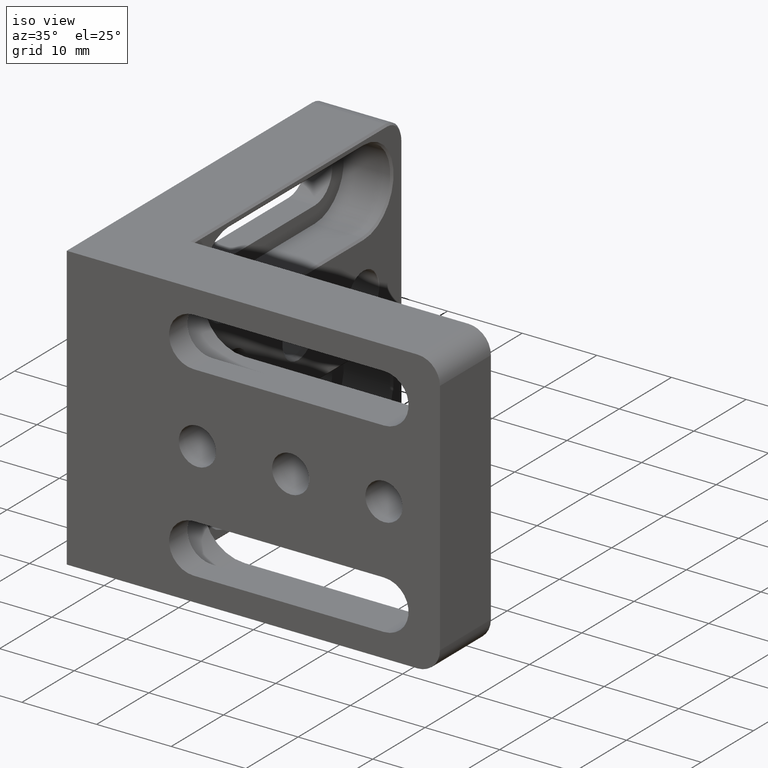
[diagram: clean part render]
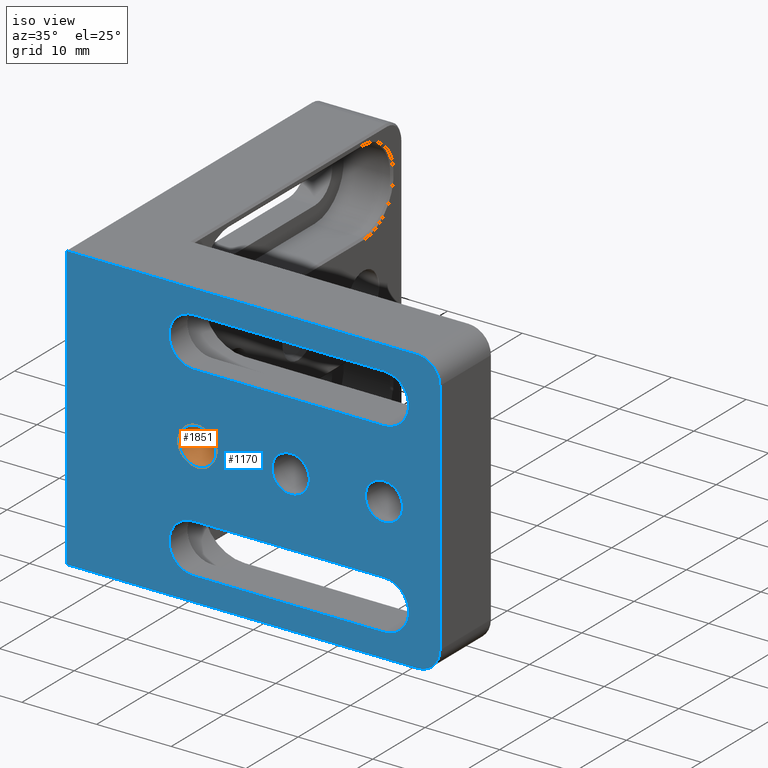
[diagram: same view with the hole feature highlighted: cylindrical wall and planar end face, labeled with their STEP entity ids]
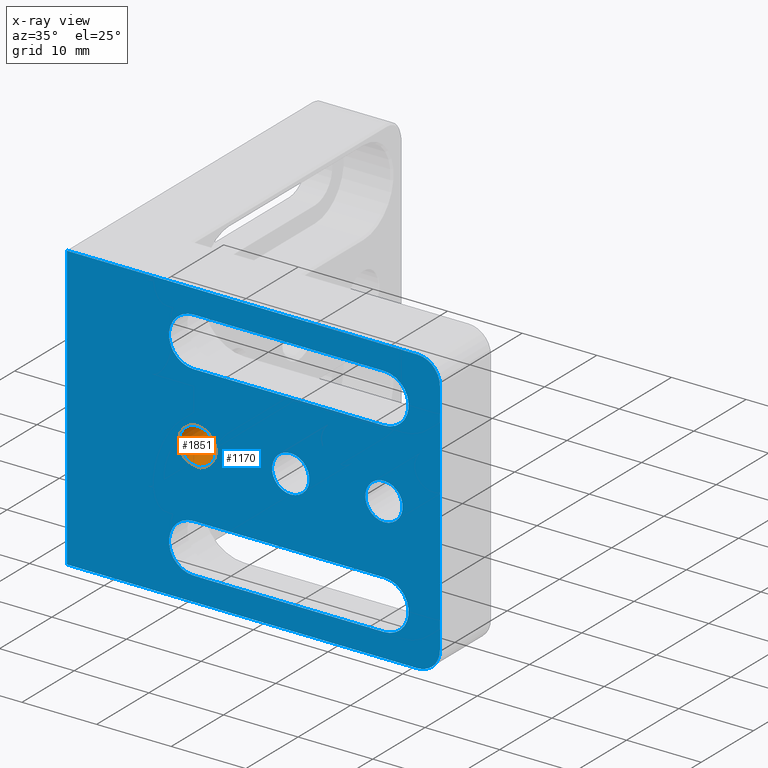
[diagram: x-ray of the same camera — body ghosted, the hole faces saturated]
A machine part, iso view. The highlighted faces form one hole feature of diameter 5 mm: the cylindrical wall (entity #1851, orange) and its adjacent planar end face (entity #1170, blue) — they share a circular edge in the B-rep.
The next image is the same camera in x-ray (body ghosted, the hole faces saturated) — the bore reads through the body.
Wall:
#15 = EDGE_LOOP ( 'NONE', ( #674 ) ) ;
#38 = DIRECTION ( 'NONE',  ( 0.000000000000000000, 0.000000000000000000, 1.000000000000000000 ) ) ;
#194 = CIRCLE ( 'NONE', #527, 2.499999999999998668 ) ;
#281 = EDGE_LOOP ( 'NONE', ( #1855 ) ) ;
#292 = EDGE_CURVE ( 'NONE', #1358, #1358, #194, .T. ) ;
#472 = CARTESIAN_POINT ( 'NONE',  ( -7.500000000000003553, -1.734723475976807094E-15, 0.000000000000000000 ) ) ;
#527 = AXIS2_PLACEMENT_3D ( 'NONE', #472, #1457, #38 ) ;
#560 = CARTESIAN_POINT ( 'NONE',  ( -7.500000000000003553, 9.474999999999974776, 2.499999999999988454 ) ) ;
#571 = EDGE_CURVE ( 'NONE', #1205, #1205, #1304, .T. ) ;
#674 = ORIENTED_EDGE ( 'NONE', *, *, #571, .T. ) ;
#945 = CARTESIAN_POINT ( 'NONE',  ( -7.500000000000003553, -1.734723475976807094E-15, 2.499999999999998668 ) ) ;
#1205 = VERTEX_POINT ( 'NONE', #560 ) ;
#1304 = CIRCLE ( 'NONE', #1519, 2.499999999999988454 ) ;
#1358 = VERTEX_POINT ( 'NONE', #945 ) ;
#1396 = FACE_OUTER_BOUND ( 'NONE', #15, .T. ) ;
#1398 = DIRECTION ( 'NONE',  ( -0.000000000000000000, 1.000000000000000000, -0.000000000000000000 ) ) ;
#1457 = DIRECTION ( 'NONE',  ( -0.000000000000000000, 1.000000000000000000, -0.000000000000000000 ) ) ;
#1519 = AXIS2_PLACEMENT_3D ( 'NONE', #2595, #1398, #2023 ) ;
#1587 = FACE_OUTER_BOUND ( 'NONE', #281, .T. ) ;
#1623 = AXIS2_PLACEMENT_3D ( 'NONE', #2393, #2167, #1993 ) ;
#1851 = ADVANCED_FACE ( 'NONE', ( #1587, #1396 ), #2563, .F. ) ;
#1855 = ORIENTED_EDGE ( 'NONE', *, *, #292, .F. ) ;
#1993 = DIRECTION ( 'NONE',  ( 0.000000000000000000, 0.000000000000000000, 1.000000000000000000 ) ) ;
#2023 = DIRECTION ( 'NONE',  ( 0.000000000000000000, 0.000000000000000000, 1.000000000000000000 ) ) ;
#2167 = DIRECTION ( 'NONE',  ( -0.000000000000000000, 1.000000000000000000, -0.000000000000000000 ) ) ;
#2393 = CARTESIAN_POINT ( 'NONE',  ( -7.500000000000003553, 10.00000000000000000, 0.000000000000000000 ) ) ;
#2563 = CYLINDRICAL_SURFACE ( 'NONE', #1623, 2.499999999999993339 ) ;
#2595 = CARTESIAN_POINT ( 'NONE',  ( -7.500000000000003553, 9.474999999999974776, 0.000000000000000000 ) ) ;
End face:
#12 = CARTESIAN_POINT ( 'NONE',  ( 0.000000000000000000, 0.000000000000000000, 15.80000000000000071 ) ) ;
#33 = DIRECTION ( 'NONE',  ( -0.000000000000000000, -1.000000000000000000, -0.000000000000000000 ) ) ;
#37 = EDGE_CURVE ( 'NONE', #417, #95, #2350, .T. ) ;
#38 = DIRECTION ( 'NONE',  ( 0.000000000000000000, 0.000000000000000000, 1.000000000000000000 ) ) ;
#45 = EDGE_CURVE ( 'NONE', #1989, #1274, #2114, .T. ) ;
#74 = VECTOR ( 'NONE', #1376, 1000.000000000000000 ) ;
#75 = EDGE_CURVE ( 'NONE', #1274, #2185, #2611, .T. ) ;
#95 = VERTEX_POINT ( 'NONE', #793 ) ;
#143 = EDGE_LOOP ( 'NONE', ( #2266, #836, #558, #1773 ) ) ;
#155 = DIRECTION ( 'NONE',  ( 2.312964634635743450E-15, 0.000000000000000000, 1.000000000000000000 ) ) ;
#178 = CARTESIAN_POINT ( 'NONE',  ( 17.49999999999999645, 0.000000000000000000, -12.50000000000000000 ) ) ;
#194 = CIRCLE ( 'NONE', #527, 2.499999999999998668 ) ;
#225 = DIRECTION ( 'NONE',  ( 0.000000000000000000, -0.000000000000000000, 1.000000000000000000 ) ) ;
#227 = EDGE_CURVE ( 'NONE', #802, #802, #438, .T. ) ;
#257 = AXIS2_PLACEMENT_3D ( 'NONE', #2301, #663, #225 ) ;
#271 = VERTEX_POINT ( 'NONE', #1696 ) ;
#275 = FACE_BOUND ( 'NONE', #1464, .T. ) ;
#292 = EDGE_CURVE ( 'NONE', #1358, #1358, #194, .T. ) ;
#306 = EDGE_CURVE ( 'NONE', #1999, #522, #459, .T. ) ;
#326 = VECTOR ( 'NONE', #565, 1000.000000000000000 ) ;
#333 = DIRECTION ( 'NONE',  ( 0.000000000000000000, 0.000000000000000000, 1.000000000000000000 ) ) ;
#341 = EDGE_LOOP ( 'NONE', ( #1631, #1309, #1344, #1334 ) ) ;
#344 = CIRCLE ( 'NONE', #677, 2.999999999999999112 ) ;
#387 = ORIENTED_EDGE ( 'NONE', *, *, #1571, .F. ) ;
#408 = VERTEX_POINT ( 'NONE', #2447 ) ;
#417 = VERTEX_POINT ( 'NONE', #722 ) ;
#438 = CIRCLE ( 'NONE', #774, 2.499999999999998668 ) ;
#452 = PLANE ( 'NONE',  #257 ) ;
#453 = CARTESIAN_POINT ( 'NONE',  ( -25.00000000000000711, 0.000000000000000000, -19.00000000000000000 ) ) ;
#459 = LINE ( 'NONE', #2104, #874 ) ;
#465 = DIRECTION ( 'NONE',  ( 1.000000000000000000, 0.000000000000000000, 0.000000000000000000 ) ) ;
#472 = CARTESIAN_POINT ( 'NONE',  ( -7.500000000000003553, -1.734723475976807094E-15, 0.000000000000000000 ) ) ;
#504 = EDGE_LOOP ( 'NONE', ( #2370 ) ) ;
#522 = VERTEX_POINT ( 'NONE', #2446 ) ;
#527 = AXIS2_PLACEMENT_3D ( 'NONE', #472, #1457, #38 ) ;
#546 = CIRCLE ( 'NONE', #2045, 2.999999999999999112 ) ;
#558 = ORIENTED_EDGE ( 'NONE', *, *, #37, .T. ) ;
#565 = DIRECTION ( 'NONE',  ( -1.000000000000000000, -0.000000000000000000, -0.000000000000000000 ) ) ;
#634 = AXIS2_PLACEMENT_3D ( 'NONE', #2000, #1632, #2256 ) ;
#663 = DIRECTION ( 'NONE',  ( 0.000000000000000000, 1.000000000000000000, 0.000000000000000000 ) ) ;
#668 = DIRECTION ( 'NONE',  ( 0.000000000000000000, 0.000000000000000000, 1.000000000000000000 ) ) ;
#677 = AXIS2_PLACEMENT_3D ( 'NONE', #2584, #806, #155 ) ;
#722 = CARTESIAN_POINT ( 'NONE',  ( -8.000000000000000000, -8.673617379884035472E-16, -9.199999999999999289 ) ) ;
#741 = EDGE_CURVE ( 'NONE', #2185, #271, #981, .T. ) ;
#760 = CARTESIAN_POINT ( 'NONE',  ( 24.99999999999999645, 0.000000000000000000, 16.00000000000000355 ) ) ;
#774 = AXIS2_PLACEMENT_3D ( 'NONE', #1031, #1497, #2320 ) ;
#775 = CARTESIAN_POINT ( 'NONE',  ( 24.99999999999999289, 0.000000000000000000, -16.00000000000000000 ) ) ;
#793 = CARTESIAN_POINT ( 'NONE',  ( 17.49999999999999645, 0.000000000000000000, -9.199999999999999289 ) ) ;
#796 = EDGE_LOOP ( 'NONE', ( #1817, #1569, #387, #2155, #1509, #2080 ) ) ;
#802 = VERTEX_POINT ( 'NONE', #2214 ) ;
#806 = DIRECTION ( 'NONE',  ( -0.000000000000000000, -1.000000000000000000, -0.000000000000000000 ) ) ;
#822 = CARTESIAN_POINT ( 'NONE',  ( -25.00000000000000711, 0.000000000000000000, -19.00000000000000000 ) ) ;
#831 = EDGE_CURVE ( 'NONE', #522, #417, #1200, .T. ) ;
#836 = ORIENTED_EDGE ( 'NONE', *, *, #831, .T. ) ;
#844 = DIRECTION ( 'NONE',  ( -1.000000000000000000, 0.000000000000000000, 0.000000000000000000 ) ) ;
#874 = VECTOR ( 'NONE', #844, 1000.000000000000000 ) ;
#877 = LINE ( 'NONE', #453, #1360 ) ;
#926 = LINE ( 'NONE', #2352, #1900 ) ;
#945 = CARTESIAN_POINT ( 'NONE',  ( -7.500000000000003553, -1.734723475976807094E-15, 2.499999999999998668 ) ) ;
#981 = CIRCLE ( 'NONE', #1580, 3.300000000000000711 ) ;
#1031 = CARTESIAN_POINT ( 'NONE',  ( 17.49999999999999645, -1.734723475976807094E-15, 0.000000000000000000 ) ) ;
#1051 = FACE_OUTER_BOUND ( 'NONE', #796, .T. ) ;
#1064 = LINE ( 'NONE', #2290, #1065 ) ;
#1065 = VECTOR ( 'NONE', #465, 1000.000000000000000 ) ;
#1091 = CARTESIAN_POINT ( 'NONE',  ( 17.49999999999999645, -8.673617379884035472E-16, 9.199999999999999289 ) ) ;
#1151 = CARTESIAN_POINT ( 'NONE',  ( 24.99999999999999289, 0.000000000000000000, -19.00000000000000000 ) ) ;
#1170 = ADVANCED_FACE ( 'NONE', ( #2086, #275, #1490, #1051, #1691, #1287 ), #452, .F. ) ;
#1188 = VECTOR ( 'NONE', #1824, 1000.000000000000000 ) ;
#1200 = CIRCLE ( 'NONE', #2340, 3.300000000000000711 ) ;
#1203 = VERTEX_POINT ( 'NONE', #822 ) ;
#1214 = EDGE_CURVE ( 'NONE', #1499, #1333, #1064, .T. ) ;
#1274 = VERTEX_POINT ( 'NONE', #1544 ) ;
#1287 = FACE_BOUND ( 'NONE', #341, .T. ) ;
#1306 = EDGE_CURVE ( 'NONE', #271, #1989, #926, .T. ) ;
#1309 = ORIENTED_EDGE ( 'NONE', *, *, #75, .F. ) ;
#1328 = EDGE_CURVE ( 'NONE', #1753, #1203, #1351, .T. ) ;
#1333 = VERTEX_POINT ( 'NONE', #1367 ) ;
#1334 = ORIENTED_EDGE ( 'NONE', *, *, #1306, .F. ) ;
#1338 = DIRECTION ( 'NONE',  ( 1.000000000000000000, -0.000000000000000000, 0.000000000000000000 ) ) ;
#1344 = ORIENTED_EDGE ( 'NONE', *, *, #45, .F. ) ;
#1351 = LINE ( 'NONE', #2164, #326 ) ;
#1358 = VERTEX_POINT ( 'NONE', #945 ) ;
#1360 = VECTOR ( 'NONE', #1693, 1000.000000000000000 ) ;
#1367 = CARTESIAN_POINT ( 'NONE',  ( 21.99999999999999645, 0.000000000000000000, 19.00000000000000000 ) ) ;
#1376 = DIRECTION ( 'NONE',  ( 1.000000000000000000, -0.000000000000000000, 0.000000000000000000 ) ) ;
#1446 = CIRCLE ( 'NONE', #2123, 2.499999999999998668 ) ;
#1457 = DIRECTION ( 'NONE',  ( -0.000000000000000000, 1.000000000000000000, -0.000000000000000000 ) ) ;
#1464 = EDGE_LOOP ( 'NONE', ( #2356 ) ) ;
#1490 = FACE_BOUND ( 'NONE', #504, .T. ) ;
#1497 = DIRECTION ( 'NONE',  ( -0.000000000000000000, 1.000000000000000000, -0.000000000000000000 ) ) ;
#1499 = VERTEX_POINT ( 'NONE', #2528 ) ;
#1508 = LINE ( 'NONE', #1151, #2403 ) ;
#1509 = ORIENTED_EDGE ( 'NONE', *, *, #1214, .F. ) ;
#1517 = DIRECTION ( 'NONE',  ( 0.000000000000000000, 1.000000000000000000, 0.000000000000000000 ) ) ;
#1544 = CARTESIAN_POINT ( 'NONE',  ( 17.49999999999999645, 0.000000000000000000, 15.80000000000000071 ) ) ;
#1569 = ORIENTED_EDGE ( 'NONE', *, *, #2006, .T. ) ;
#1571 = EDGE_CURVE ( 'NONE', #2597, #2582, #1508, .T. ) ;
#1580 = AXIS2_PLACEMENT_3D ( 'NONE', #2303, #33, #668 ) ;
#1581 = CARTESIAN_POINT ( 'NONE',  ( -8.000000000000000000, -8.673617379884035472E-16, 15.80000000000000071 ) ) ;
#1631 = ORIENTED_EDGE ( 'NONE', *, *, #741, .F. ) ;
#1632 = DIRECTION ( 'NONE',  ( -0.000000000000000000, -1.000000000000000000, -0.000000000000000000 ) ) ;
#1645 = EDGE_CURVE ( 'NONE', #408, #408, #1446, .T. ) ;
#1691 = FACE_BOUND ( 'NONE', #143, .T. ) ;
#1693 = DIRECTION ( 'NONE',  ( 9.130123557772669567E-17, 0.000000000000000000, 1.000000000000000000 ) ) ;
#1696 = CARTESIAN_POINT ( 'NONE',  ( -8.000000000000000000, -8.673617379884035472E-16, 9.199999999999999289 ) ) ;
#1753 = VERTEX_POINT ( 'NONE', #2577 ) ;
#1773 = ORIENTED_EDGE ( 'NONE', *, *, #2548, .T. ) ;
#1779 = CARTESIAN_POINT ( 'NONE',  ( 0.000000000000000000, 0.000000000000000000, -9.199999999999999289 ) ) ;
#1817 = ORIENTED_EDGE ( 'NONE', *, *, #1328, .F. ) ;
#1824 = DIRECTION ( 'NONE',  ( -1.000000000000000000, 0.000000000000000000, 0.000000000000000000 ) ) ;
#1891 = CARTESIAN_POINT ( 'NONE',  ( 17.49999999999999645, -8.673617379884035472E-16, -15.80000000000000071 ) ) ;
#1900 = VECTOR ( 'NONE', #1338, 1000.000000000000000 ) ;
#1945 = ORIENTED_EDGE ( 'NONE', *, *, #292, .T. ) ;
#1989 = VERTEX_POINT ( 'NONE', #1091 ) ;
#1998 = DIRECTION ( 'NONE',  ( 0.000000000000000000, 1.000000000000000000, 0.000000000000000000 ) ) ;
#1999 = VERTEX_POINT ( 'NONE', #1891 ) ;
#2000 = CARTESIAN_POINT ( 'NONE',  ( 17.49999999999999645, 0.000000000000000000, 12.50000000000000000 ) ) ;
#2006 = EDGE_CURVE ( 'NONE', #1753, #2582, #546, .T. ) ;
#2043 = EDGE_CURVE ( 'NONE', #1203, #1499, #877, .T. ) ;
#2045 = AXIS2_PLACEMENT_3D ( 'NONE', #2325, #2277, #2291 ) ;
#2063 = DIRECTION ( 'NONE',  ( -0.000000000000000000, 1.000000000000000000, -0.000000000000000000 ) ) ;
#2080 = ORIENTED_EDGE ( 'NONE', *, *, #2043, .F. ) ;
#2086 = FACE_BOUND ( 'NONE', #2261, .T. ) ;
#2104 = CARTESIAN_POINT ( 'NONE',  ( 0.000000000000000000, 0.000000000000000000, -15.80000000000000071 ) ) ;
#2114 = CIRCLE ( 'NONE', #634, 3.300000000000000711 ) ;
#2123 = AXIS2_PLACEMENT_3D ( 'NONE', #2417, #2063, #2223 ) ;
#2155 = ORIENTED_EDGE ( 'NONE', *, *, #2179, .T. ) ;
#2164 = CARTESIAN_POINT ( 'NONE',  ( -25.00000000000000711, 0.000000000000000000, -19.00000000000000000 ) ) ;
#2179 = EDGE_CURVE ( 'NONE', #2597, #1333, #344, .T. ) ;
#2185 = VERTEX_POINT ( 'NONE', #1581 ) ;
#2214 = CARTESIAN_POINT ( 'NONE',  ( 17.49999999999999645, -1.734723475976807094E-15, 2.499999999999998668 ) ) ;
#2223 = DIRECTION ( 'NONE',  ( 0.000000000000000000, 0.000000000000000000, 1.000000000000000000 ) ) ;
#2256 = DIRECTION ( 'NONE',  ( 0.000000000000000000, 0.000000000000000000, 1.000000000000000000 ) ) ;
#2261 = EDGE_LOOP ( 'NONE', ( #1945 ) ) ;
#2266 = ORIENTED_EDGE ( 'NONE', *, *, #306, .T. ) ;
#2277 = DIRECTION ( 'NONE',  ( -0.000000000000000000, -1.000000000000000000, -0.000000000000000000 ) ) ;
#2290 = CARTESIAN_POINT ( 'NONE',  ( -25.00000000000000355, 0.000000000000000000, 19.00000000000000000 ) ) ;
#2291 = DIRECTION ( 'NONE',  ( 0.000000000000000000, 0.000000000000000000, 1.000000000000000000 ) ) ;
#2301 = CARTESIAN_POINT ( 'NONE',  ( 0.000000000000000000, 0.000000000000000000, 0.000000000000000000 ) ) ;
#2303 = CARTESIAN_POINT ( 'NONE',  ( -8.000000000000000000, 0.000000000000000000, 12.50000000000000000 ) ) ;
#2320 = DIRECTION ( 'NONE',  ( 0.000000000000000000, 0.000000000000000000, 1.000000000000000000 ) ) ;
#2325 = CARTESIAN_POINT ( 'NONE',  ( 21.99999999999999289, 0.000000000000000000, -16.00000000000000000 ) ) ;
#2340 = AXIS2_PLACEMENT_3D ( 'NONE', #2562, #1517, #333 ) ;
#2350 = LINE ( 'NONE', #1779, #74 ) ;
#2352 = CARTESIAN_POINT ( 'NONE',  ( 0.000000000000000000, 0.000000000000000000, 9.199999999999999289 ) ) ;
#2356 = ORIENTED_EDGE ( 'NONE', *, *, #1645, .T. ) ;
#2370 = ORIENTED_EDGE ( 'NONE', *, *, #227, .T. ) ;
#2403 = VECTOR ( 'NONE', #2515, 1000.000000000000000 ) ;
#2417 = CARTESIAN_POINT ( 'NONE',  ( 4.999999999999997335, -1.734723475976807094E-15, 0.000000000000000000 ) ) ;
#2446 = CARTESIAN_POINT ( 'NONE',  ( -8.000000000000000000, -8.673617379884035472E-16, -15.80000000000000071 ) ) ;
#2447 = CARTESIAN_POINT ( 'NONE',  ( 4.999999999999997335, -1.734723475976807094E-15, 2.499999999999998668 ) ) ;
#2486 = AXIS2_PLACEMENT_3D ( 'NONE', #178, #1998, #2609 ) ;
#2515 = DIRECTION ( 'NONE',  ( -9.130123557772669567E-17, -0.000000000000000000, -1.000000000000000000 ) ) ;
#2526 = CIRCLE ( 'NONE', #2486, 3.300000000000000711 ) ;
#2528 = CARTESIAN_POINT ( 'NONE',  ( -25.00000000000000355, 0.000000000000000000, 19.00000000000000000 ) ) ;
#2548 = EDGE_CURVE ( 'NONE', #95, #1999, #2526, .T. ) ;
#2562 = CARTESIAN_POINT ( 'NONE',  ( -8.000000000000000000, 0.000000000000000000, -12.50000000000000000 ) ) ;
#2577 = CARTESIAN_POINT ( 'NONE',  ( 21.99999999999999289, 0.000000000000000000, -19.00000000000000000 ) ) ;
#2582 = VERTEX_POINT ( 'NONE', #775 ) ;
#2584 = CARTESIAN_POINT ( 'NONE',  ( 22.00000000000000000, 0.000000000000000000, 16.00000000000000355 ) ) ;
#2597 = VERTEX_POINT ( 'NONE', #760 ) ;
#2609 = DIRECTION ( 'NONE',  ( 0.000000000000000000, 0.000000000000000000, 1.000000000000000000 ) ) ;
#2611 = LINE ( 'NONE', #12, #1188 ) ;